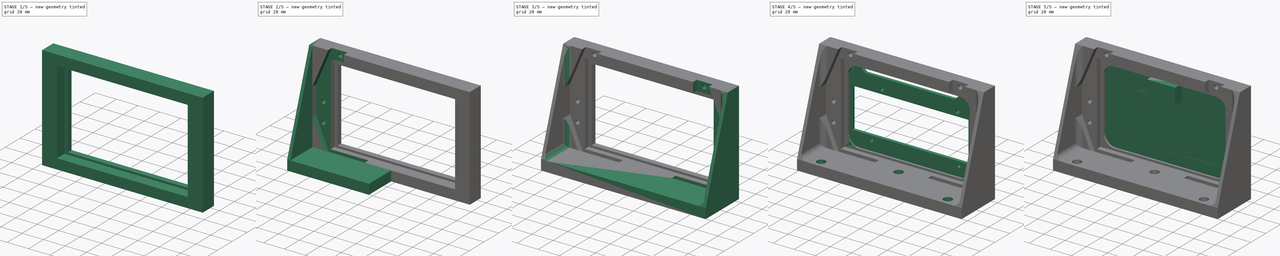
[diagram: build sequence overview — one tinted view per stage of 5, left to right]
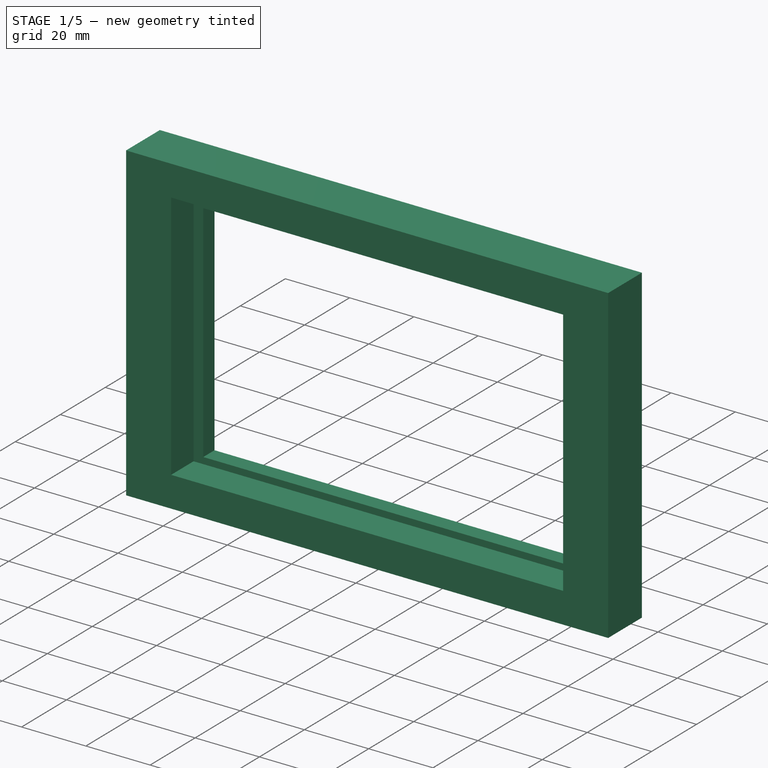
[diagram: stage 1 of 5 — iso view after this stage's code; geometry added in this stage tinted green]
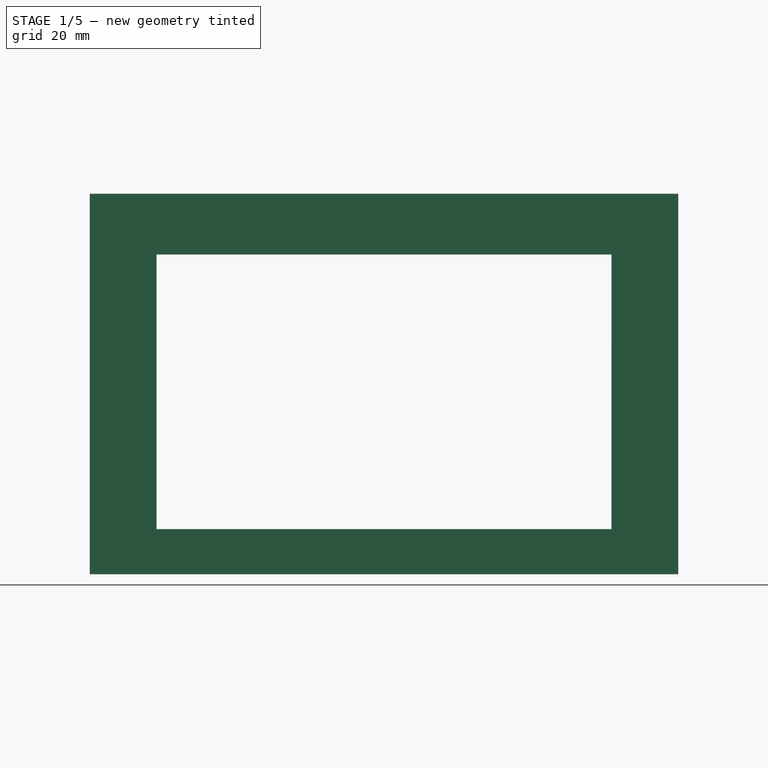
[diagram: stage 1 of 5 — front view after this stage's code; geometry added in this stage tinted green]
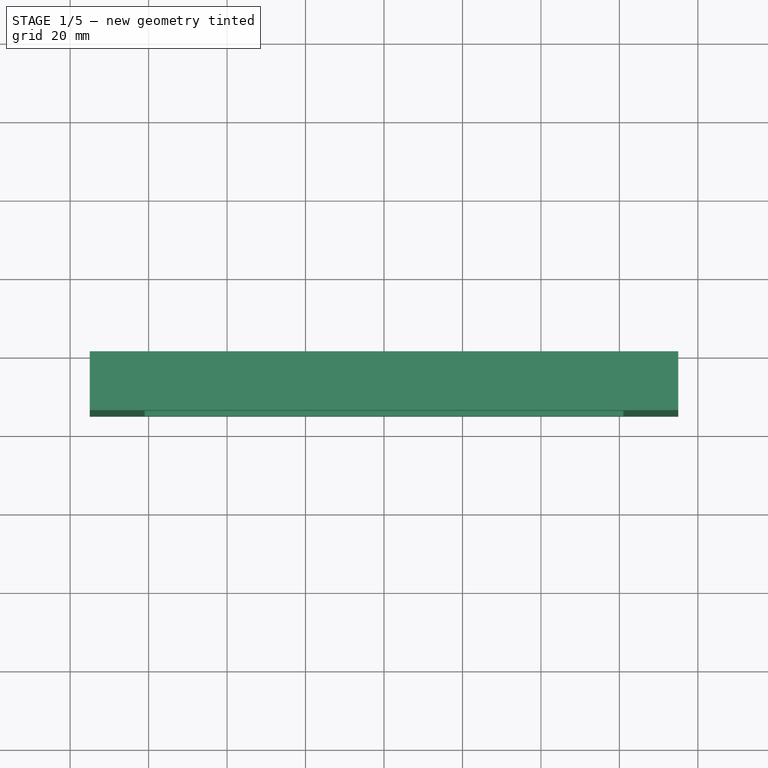
[diagram: stage 1 of 5 — top view after this stage's code; geometry added in this stage tinted green]
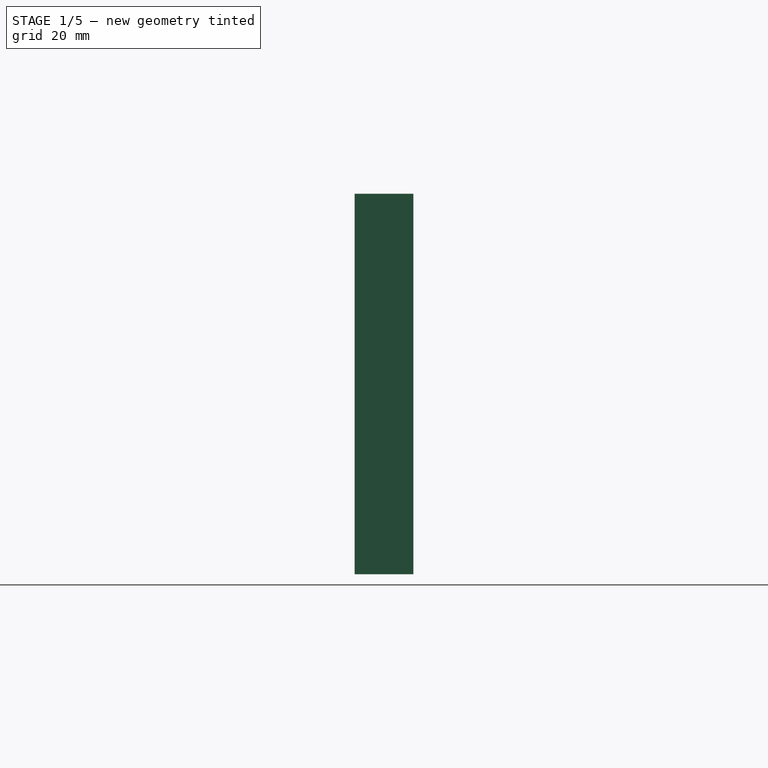
[diagram: stage 1 of 5 — right view after this stage's code; geometry added in this stage tinted green]
FCSTD DOCUMENT  (FreeCAD 1.0R39319 (Git))
Label: DisplayHolder
License: All rights reserved
LicenseURL: https://en.wikipedia.org/wiki/All_rights_reserved
objects: Sketcher::SketchObject×13, PartDesign::Pad×7, PartDesign::Pocket×6, PartDesign::Body×4, PartDesign::Fillet×2, PartDesign::Mirrored×1, PartDesign::Hole×1, App::LinkGroup×1
note: 80 computed .brp shape members not serialized (recipe doc carries the construction recipe); baked Part::Feature solids carry a one-line shape summary decoded from their .brp

FEATURE [Sketcher::SketchObject] Sketch
  ArcFitTolerance = 1e-06
  AttachmentSupport = -> [XZ_Plane]
  FullyConstrained = true
  MakeInternals = false
  MapMode = 5
  Placement = pos=(0,0,0) rot=(1,0,0;1.5708rad)
  sketch-geometry (5):
    g0: LineSegment StartX=-75 StartY=-48.5 StartZ=0 EndX=75 EndY=-48.5 EndZ=0
    g1: LineSegment StartX=75 StartY=-48.5 StartZ=0 EndX=75 EndY=48.5 EndZ=0
    g2: LineSegment StartX=75 StartY=48.5 StartZ=0 EndX=-75 EndY=48.5 EndZ=0
    g3: LineSegment StartX=-75 StartY=48.5 StartZ=0 EndX=-75 EndY=-48.5 EndZ=0
    g4: GeomPoint [constr] X=0 Y=0 Z=0
  constraints (12):
    c: Coincident(g0,g1)
    c: Coincident(g1,g2)
    c: Coincident(g2,g3)
    c: Coincident(g3,g0)
    c: Horizontal(g0)
    c: Horizontal(g2)
    c: Vertical(g1)
    c: Vertical(g3)
    c: Symmetric(g2,g0,g4)
    c: Distance(g1,g3) = 150
    c: Distance(g0,g2) = 97
    c: Coincident(g4,g-1)
FEATURE [PartDesign::Pad] Pad
  Direction = (0,-1,2e-16)
  Length = 15
  Length2 = 10
  Placement = pos=(0,0,0) rot=(1,0,0;1.5708rad)
  Profile = -> Sketch
  ReferenceAxis = -> Sketch [N_Axis]
  Refine = true
  Suppressed = false
  Type = 0
FEATURE [Sketcher::SketchObject] Sketch001
  ArcFitTolerance = 1e-06
  AttachmentSupport = -> [Pad]
  FullyConstrained = true
  MakeInternals = false
  MapMode = 5
  Placement = pos=(0,-15,0) rot=(1,0,0;1.5708rad)
  sketch-geometry (5):
    g0: LineSegment StartX=-61 StartY=-39 StartZ=0 EndX=61 EndY=-39 EndZ=0
    g1: LineSegment StartX=61 StartY=-39 StartZ=0 EndX=61 EndY=39 EndZ=0
    g2: LineSegment StartX=61 StartY=39 StartZ=0 EndX=-61 EndY=39 EndZ=0
    g3: LineSegment StartX=-61 StartY=39 StartZ=0 EndX=-61 EndY=-39 EndZ=0
    g4: GeomPoint [constr] X=0 Y=0 Z=0
  constraints (12):
    c: Coincident(g0,g1)
    c: Coincident(g1,g2)
    c: Coincident(g2,g3)
    c: Coincident(g3,g0)
    c: Horizontal(g0)
    c: Horizontal(g2)
    c: Vertical(g1)
    c: Vertical(g3)
    c: Symmetric(g2,g0,g4)
    c: Distance(g1,g3) = 122
    c: Distance(g0,g2) = 78
    c: Coincident(g4,g-1)
FEATURE [PartDesign::Pocket] Pocket
  BaseFeature = -> Pad
  Direction = (0,1,-2e-16)
  Length = 10
  Length2 = 5
  Placement = pos=(0,0,0) rot=(1,0,0;1.5708rad)
  Profile = -> Sketch001
  ReferenceAxis = -> Sketch001 [N_Axis]
  Refine = true
  Suppressed = false
  Type = 0
FEATURE [Sketcher::SketchObject] Sketch002
  ArcFitTolerance = 1e-06
  AttachmentSupport = -> [Pocket]
  FullyConstrained = false
  MakeInternals = false
  MapMode = 5
  Placement = pos=(0,0,0) rot=(-1,0,0;1.5708rad)
  sketch-geometry (4):
    g0: LineSegment StartX=-57.9918 StartY=37 StartZ=0 EndX=58 EndY=37 EndZ=0
    g1: LineSegment StartX=58 StartY=37 StartZ=0 EndX=58 EndY=-33 EndZ=0
    g2: LineSegment StartX=-57.9918 StartY=-33 StartZ=0 EndX=-57.9918 EndY=37 EndZ=0
    g3: LineSegment StartX=-57.9918 StartY=-33 StartZ=0 EndX=58 EndY=-33 EndZ=0
  constraints (10):
    c: Horizontal(g0)
    c: Distance(g-1,g0) = 37
    c: Coincident(g0,g2)
    c: Coincident(g0,g1)
    c: Distance(g-1,g3) = 33
    c: Coincident(g2,g3)
    c: Coincident(g1,g3)
    c: Horizontal(g3)
    c: Vertical(g2)
    c: Vertical(g1)
FEATURE [PartDesign::Pocket] Pocket001
  BaseFeature = -> Pocket
  Direction = (0,-1,-2e-16)
  Length = 5
  Length2 = 5
  Placement = pos=(0,0,0) rot=(1,0,0;1.5708rad)
  Profile = -> Sketch002
  ReferenceAxis = -> Sketch002 [N_Axis]
  Refine = true
  Suppressed = false
  Type = 0
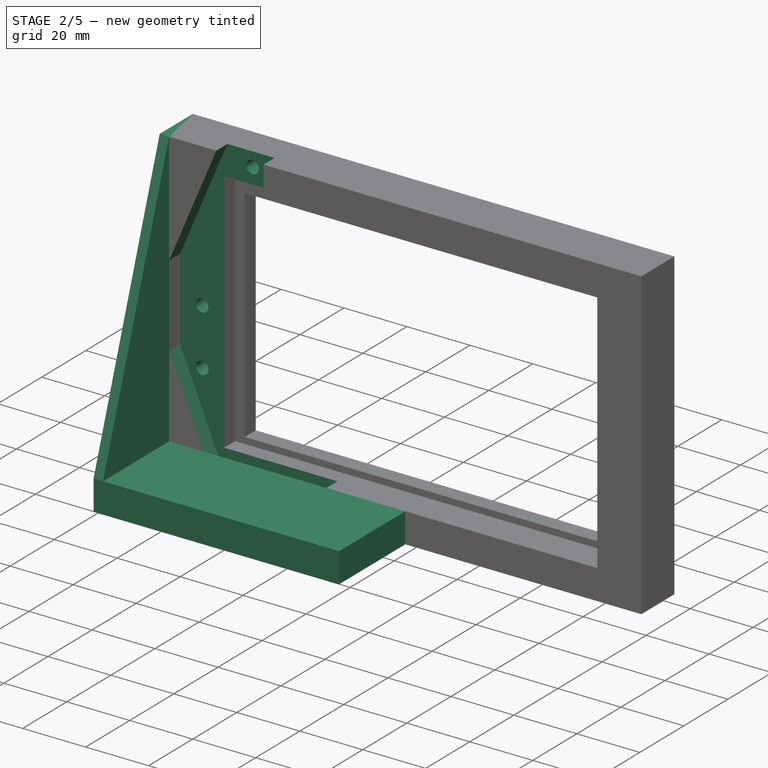
[diagram: stage 2 of 5 — iso view after this stage's code; geometry added in this stage tinted green]
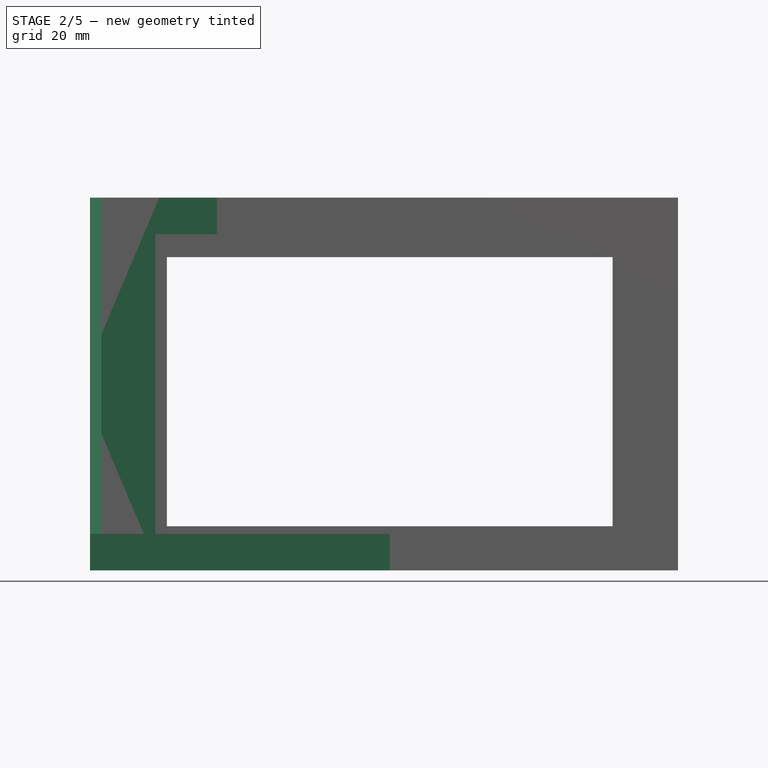
[diagram: stage 2 of 5 — front view after this stage's code; geometry added in this stage tinted green]
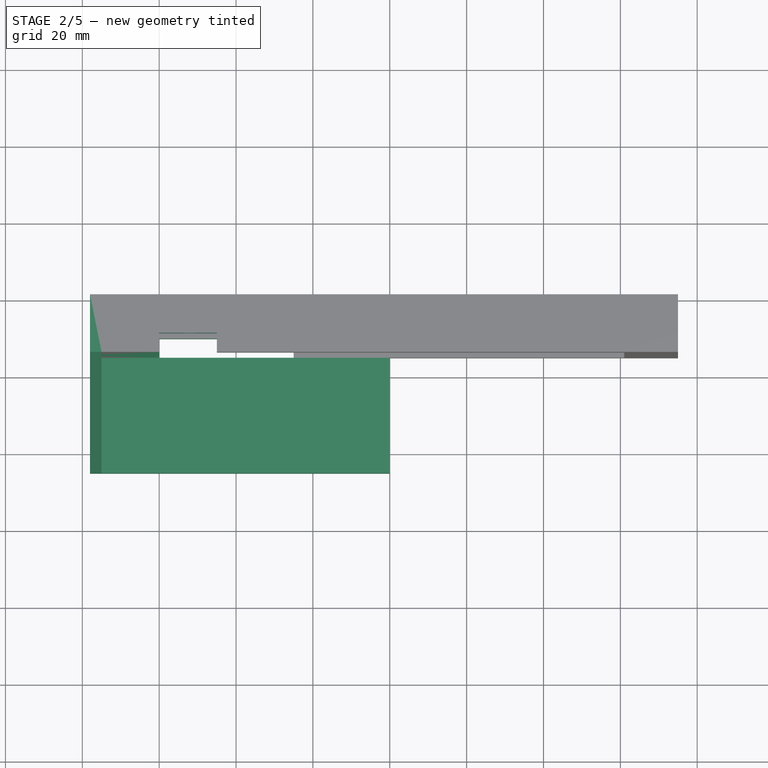
[diagram: stage 2 of 5 — top view after this stage's code; geometry added in this stage tinted green]
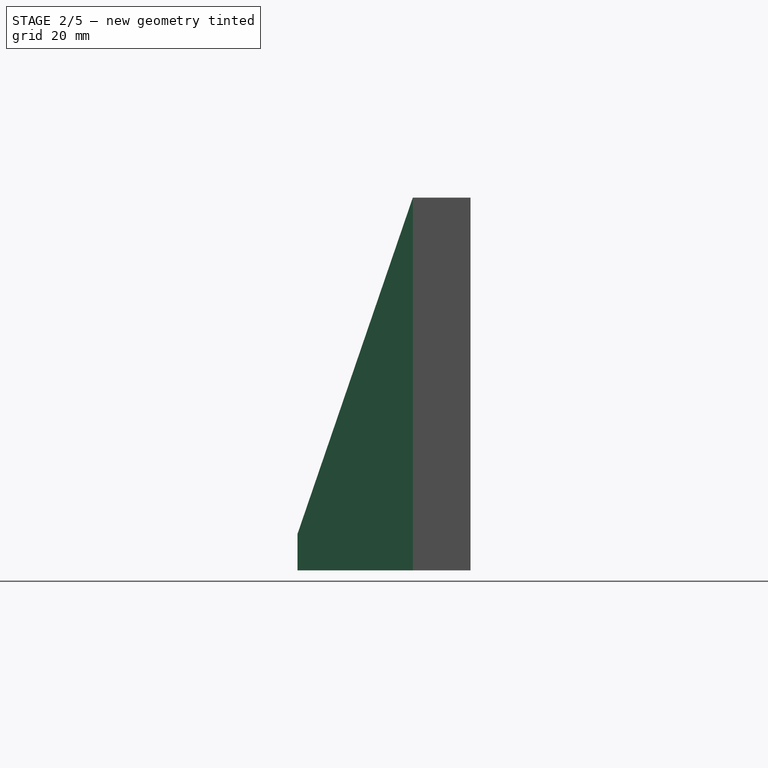
[diagram: stage 2 of 5 — right view after this stage's code; geometry added in this stage tinted green]
FEATURE [Sketcher::SketchObject] Sketch003
  ArcFitTolerance = 1e-06
  AttachmentSupport = -> [Pocket001]
  ExternalGeometry = -> [Pocket001]
  FullyConstrained = false
  MakeInternals = false
  MapMode = 5
  Placement = pos=(0,-15,0) rot=(1,0,0;1.5708rad)
  sketch-geometry (8):
    g0: LineSegment StartX=-45 StartY=48.5 StartZ=0 EndX=-60 EndY=48.5 EndZ=0
    g1: LineSegment StartX=-60 StartY=48.5 StartZ=0 EndX=-75 EndY=13 EndZ=0
    g2: LineSegment StartX=-75 StartY=13 StartZ=0 EndX=-75 EndY=-13 EndZ=0
    g3: LineSegment StartX=-75 StartY=-13 StartZ=0 EndX=-60 EndY=-48.5 EndZ=0
    g4: LineSegment StartX=-60 StartY=-48.5 StartZ=0 EndX=-25 EndY=-48.5 EndZ=0
    g5: LineSegment StartX=-45 StartY=48.5 StartZ=0 EndX=-45 EndY=-25.4373 EndZ=0
    g6: LineSegment StartX=-45 StartY=-25.4373 StartZ=0 EndX=-25 EndY=-25.4373 EndZ=0
    g7: LineSegment StartX=-25 StartY=-25.4373 StartZ=0 EndX=-25 EndY=-48.5 EndZ=0
  constraints (22):
    c: PointOnObject(g4,g-4)
    c: PointOnObject(g0,g-3)
    c: Horizontal(g0)
    c: Coincident(g0,g1)
    c: Coincident(g1,g2)
    c: Vertical(g2)
    c: Coincident(g2,g3)
    c: PointOnObject(g3,g-4)
    c: Coincident(g3,g4)
    c: DistanceX(g0,g0) = 15
    c: Distance(g4,g4) = 35
    c: DistanceY(g2,g2) = 26
    c: Distance(g1,g-1) = 13
    c: Distance(g-2,g2) = 75
    c: Coincident(g0,g5)
    c: Vertical(g5)
    c: Coincident(g5,g6)
    c: Horizontal(g6)
    c: Coincident(g6,g7)
    c: Coincident(g7,g4)
    c: DistanceX(g2,g3) = 15
    c: Vertical(g7)
FEATURE [PartDesign::Pocket] Pocket002
  BaseFeature = -> Pocket001
  Direction = (0,1,-2e-16)
  Length = 5
  Length2 = 5
  Placement = pos=(0,0,0) rot=(1,0,0;1.5708rad)
  Profile = -> Sketch003
  ReferenceAxis = -> Sketch003 [N_Axis]
  Refine = true
  Suppressed = false
  Type = 0
FEATURE [Sketcher::SketchObject] Sketch005
  ArcFitTolerance = 1e-06
  AttachmentSupport = -> [Pocket002]
  ExternalGeometry = -> [Pocket002]
  FullyConstrained = false
  MakeInternals = false
  MapMode = 5
  Placement = pos=(-75,0,0) rot=(0.707107,0,-0.707107;3.14159rad)
  sketch-geometry (5):
    g0: LineSegment StartX=-48.5 StartY=15 StartZ=0 EndX=39 EndY=45 EndZ=0
    g1: LineSegment StartX=39 StartY=45 StartZ=0 EndX=48.5 EndY=45 EndZ=0
    g2: LineSegment StartX=48.5 StartY=45 StartZ=0 EndX=48.5 EndY=7.1e-15 EndZ=0
    g3: LineSegment StartX=48.5 StartY=7.1e-15 StartZ=0 EndX=-48.5 EndY=-1e-14 EndZ=0
    g4: LineSegment StartX=-48.5 StartY=-1e-14 StartZ=0 EndX=-48.5 EndY=15 EndZ=0
  constraints (12):
    c: Coincident(g0,g1)
    c: Coincident(g1,g2)
    c: Coincident(g2,g3)
    c: Coincident(g3,g4)
    c: Coincident(g4,g0)
    c: Vertical(g2)
    c: Horizontal(g1)
    c: DistanceY(g2,g2) = 45
    c: Vertical(g4)
    c: Coincident(g3,g-3)
    c: Coincident(g2,g-4)
    c: Vertical(g0,g-5)
FEATURE [PartDesign::Pad] Pad002
  BaseFeature = -> Pocket002
  Direction = (-1,0,-2e-16)
  Length = 3
  Length2 = 10
  Placement = pos=(0,0,0) rot=(1,0,0;1.5708rad)
  Profile = -> Sketch005
  ReferenceAxis = -> Sketch005 [N_Axis]
  Refine = true
  Suppressed = false
  Type = 0
FEATURE [Sketcher::SketchObject] Sketch006
  ArcFitTolerance = 1e-06
  AttachmentSupport = -> [Pad002]
  ExternalGeometry = -> [Pad002]
  FullyConstrained = false
  MakeInternals = false
  MapMode = 5
  Placement = pos=(-75,0,-2.25e-14) rot=(0.707107,0,0.707107;3.14159rad)
  sketch-geometry (4):
    g0: LineSegment StartX=-48.5 StartY=45 StartZ=0 EndX=-48.5 EndY=15 EndZ=0
    g1: LineSegment StartX=-48.5 StartY=15 StartZ=0 EndX=-39 EndY=15 EndZ=0
    g2: LineSegment StartX=-39 StartY=15 StartZ=0 EndX=-39 EndY=45 EndZ=0
    g3: LineSegment StartX=-39 StartY=45 StartZ=0 EndX=-48.5 EndY=45 EndZ=0
  constraints (9):
    c: Coincident(g0,g1)
    c: Coincident(g1,g2)
    c: Coincident(g2,g3)
    c: Coincident(g3,g0)
    c: Vertical(g0)
    c: Vertical(g2)
    c: Horizontal(g1)
    c: Coincident(g0,g-4)
    c: Coincident(g2,g-4)
FEATURE [PartDesign::Pad] Pad003
  BaseFeature = -> Pad002
  Direction = (1,0,-2e-16)
  Length = 75
  Length2 = 10
  Placement = pos=(0,0,0) rot=(1,0,0;1.5708rad)
  Profile = -> Sketch006
  ReferenceAxis = -> Sketch006 [N_Axis]
  Refine = true
  Suppressed = false
  Type = 0
FEATURE [Sketcher::SketchObject] Sketch007
  ArcFitTolerance = 1e-06
  AttachmentSupport = -> [Pad003]
  FullyConstrained = true
  MakeInternals = false
  MapMode = 5
  Placement = pos=(0,-10,0) rot=(1,0,0;1.5708rad)
  sketch-geometry (3):
    g0: Circle CenterX=-52 CenterY=44 CenterZ=0 NormalX=0 NormalY=0 NormalZ=1 AngleXU=0 Radius=2
    g1: Circle CenterX=-68 CenterY=0 CenterZ=0 NormalX=0 NormalY=0 NormalZ=1 AngleXU=0 Radius=2
    g2: Circle CenterX=-68 CenterY=-18 CenterZ=0 NormalX=0 NormalY=0 NormalZ=1 AngleXU=0 Radius=2
  constraints (9):
    c: Diameter(g0) = 4
    c: Diameter(g1) = 4
    c: PointOnObject(g1,g-1)
    c: Diameter(g2) = 4
    c: DistanceX(g1,g-1) = 68
    c: DistanceX(g2,g-1) = 68
    c: Distance(g2,g-1) = 18
    c: Distance(g0,g-2) = 52
    c: DistanceY(g-1,g0) = 44
FEATURE [PartDesign::Pocket] Pocket003
  BaseFeature = -> Pad003
  Direction = (0,1,-2e-16)
  Length = 8
  Length2 = 5
  Placement = pos=(0,0,0) rot=(1,0,0;1.5708rad)
  Profile = -> Sketch007
  ReferenceAxis = -> Sketch007 [N_Axis]
  Refine = true
  Suppressed = false
  Type = 0
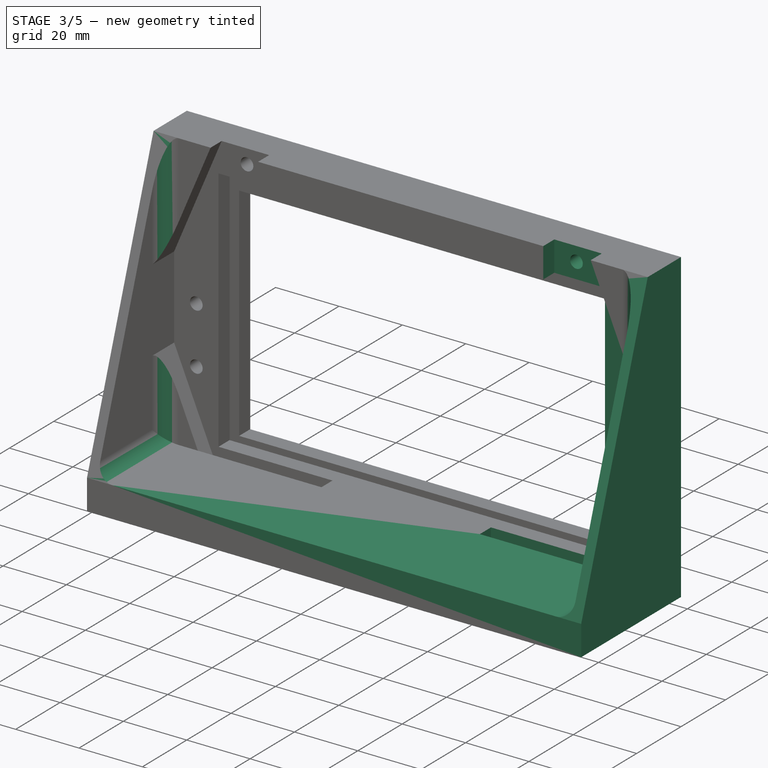
[diagram: stage 3 of 5 — iso view after this stage's code; geometry added in this stage tinted green]
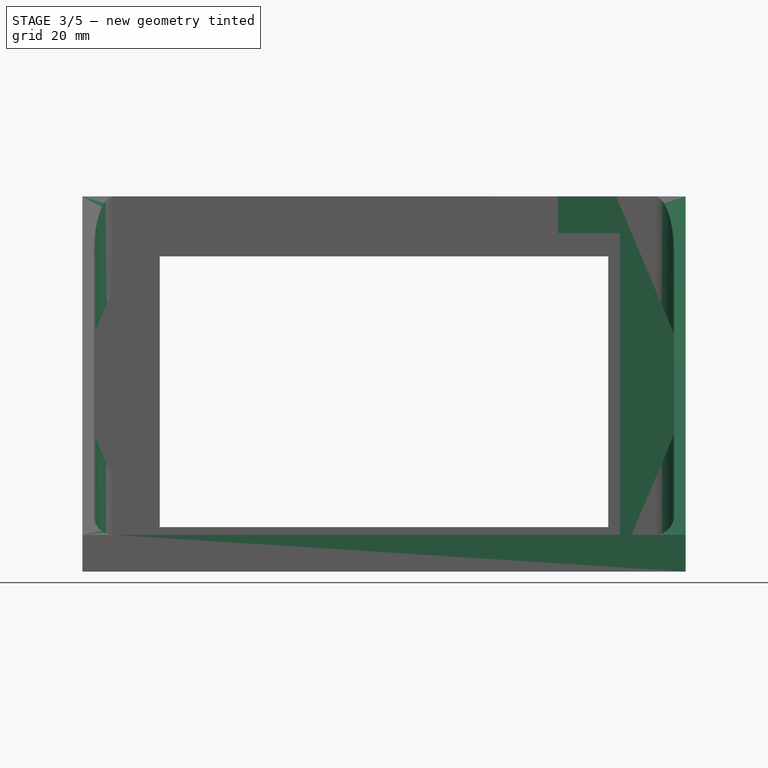
[diagram: stage 3 of 5 — front view after this stage's code; geometry added in this stage tinted green]
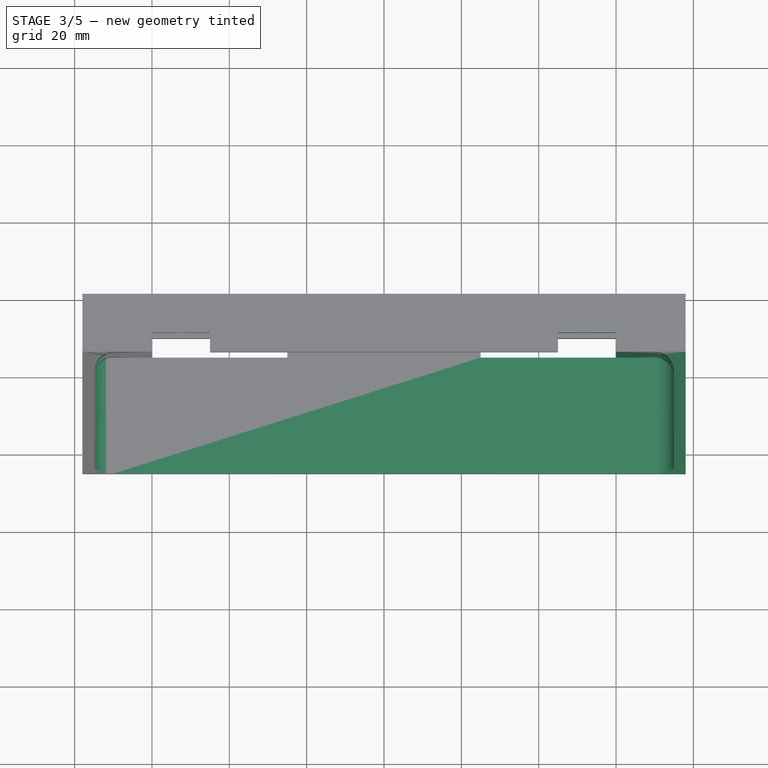
[diagram: stage 3 of 5 — top view after this stage's code; geometry added in this stage tinted green]
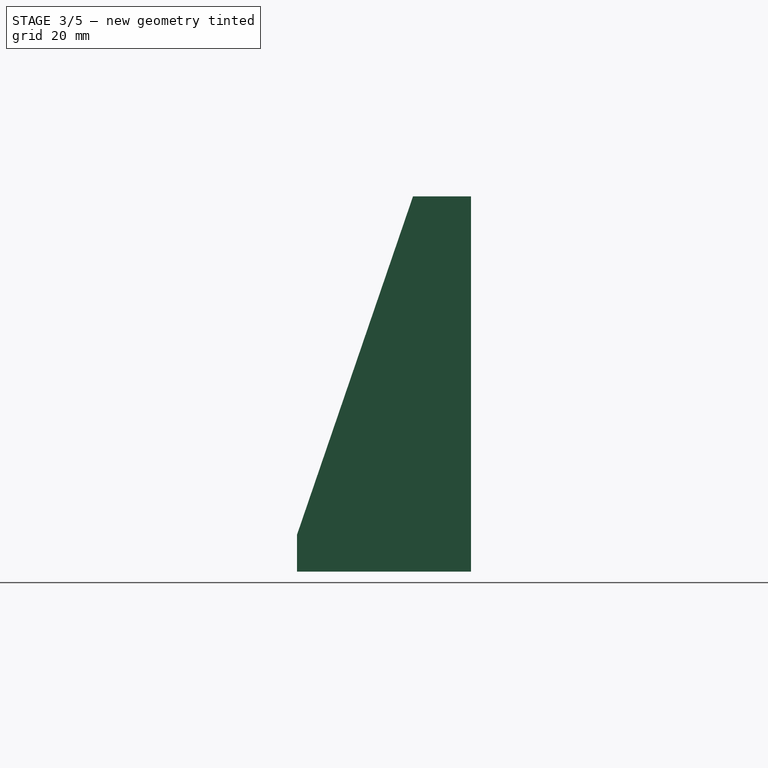
[diagram: stage 3 of 5 — right view after this stage's code; geometry added in this stage tinted green]
FEATURE [PartDesign::Fillet] Fillet
  Base = -> Pocket003 [Edge57,Edge74,Edge77]
  BaseFeature = -> Pocket003
  Placement = pos=(0,0,0) rot=(1,0,0;1.5708rad)
  Radius = 5
  Refine = true
  SupportTransform = false
  Suppressed = false
  UseAllEdges = false
FEATURE [Sketcher::SketchObject] Sketch008
  ArcFitTolerance = 1e-06
  AttachmentSupport = -> [Fillet]
  FullyConstrained = false
  MakeInternals = false
  MapMode = 5
  Placement = pos=(0,-15,0) rot=(1,0,0;1.5708rad)
  sketch-geometry (4):
    g0: LineSegment StartX=0 StartY=91.9087 StartZ=0 EndX=0 EndY=-58.0986 EndZ=0
    g1: LineSegment StartX=0 StartY=-58.0986 StartZ=0 EndX=97.0826 EndY=-58.0986 EndZ=0
    g2: LineSegment StartX=97.0826 StartY=-58.0986 StartZ=0 EndX=97.0826 EndY=91.9087 EndZ=0
    g3: LineSegment StartX=97.0826 StartY=91.9087 StartZ=0 EndX=0 EndY=91.9087 EndZ=0
  constraints (9):
    c: Coincident(g0,g1)
    c: Coincident(g1,g2)
    c: Coincident(g2,g3)
    c: Coincident(g3,g0)
    c: Vertical(g0)
    c: Vertical(g2)
    c: Horizontal(g1)
    c: Horizontal(g3)
    c: PointOnObject(g0,g-2)
FEATURE [PartDesign::Pocket] Pocket004
  BaseFeature = -> Fillet
  Direction = (0,1,-2e-16)
  Length = 5
  Length2 = 5
  Placement = pos=(0,0,0) rot=(1,0,0;1.5708rad)
  Profile = -> Sketch008
  ReferenceAxis = -> Sketch008 [N_Axis]
  Refine = true
  Suppressed = false
  Type = 1
FEATURE [PartDesign::Mirrored] Mirrored
  BaseFeature = -> Pocket004
  MirrorPlane = -> YZ_Plane
  Placement = pos=(0,0,0) rot=(1,0,0;1.5708rad)
  Refine = true
  Suppressed = false
  TransformMode = 1
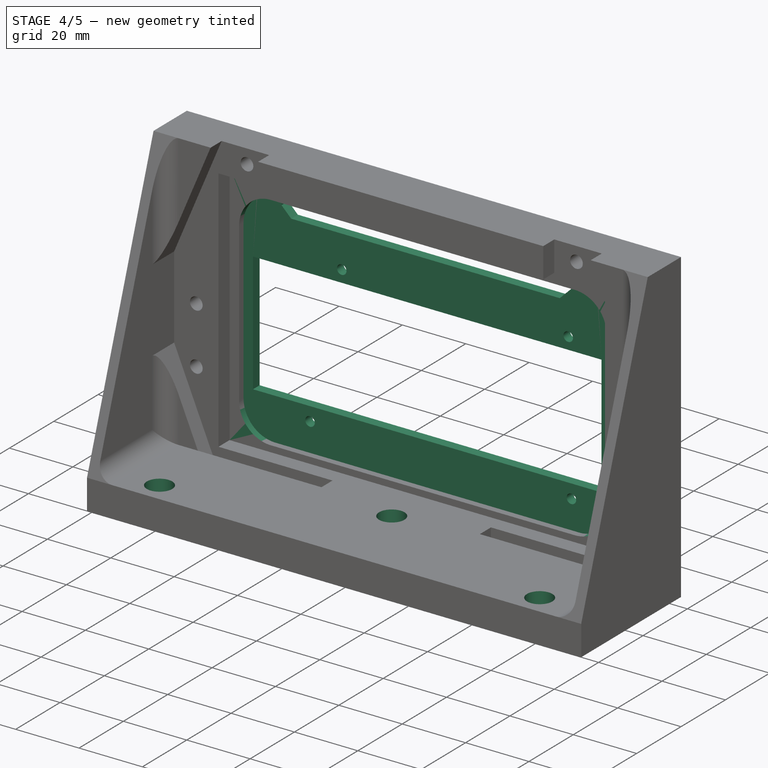
[diagram: stage 4 of 5 — iso view after this stage's code; geometry added in this stage tinted green]
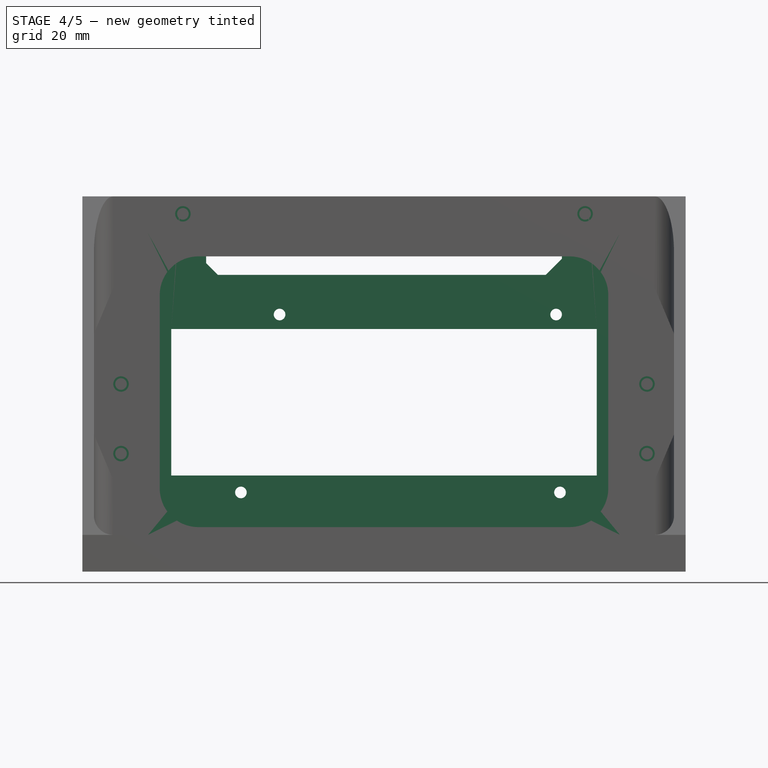
[diagram: stage 4 of 5 — front view after this stage's code; geometry added in this stage tinted green]
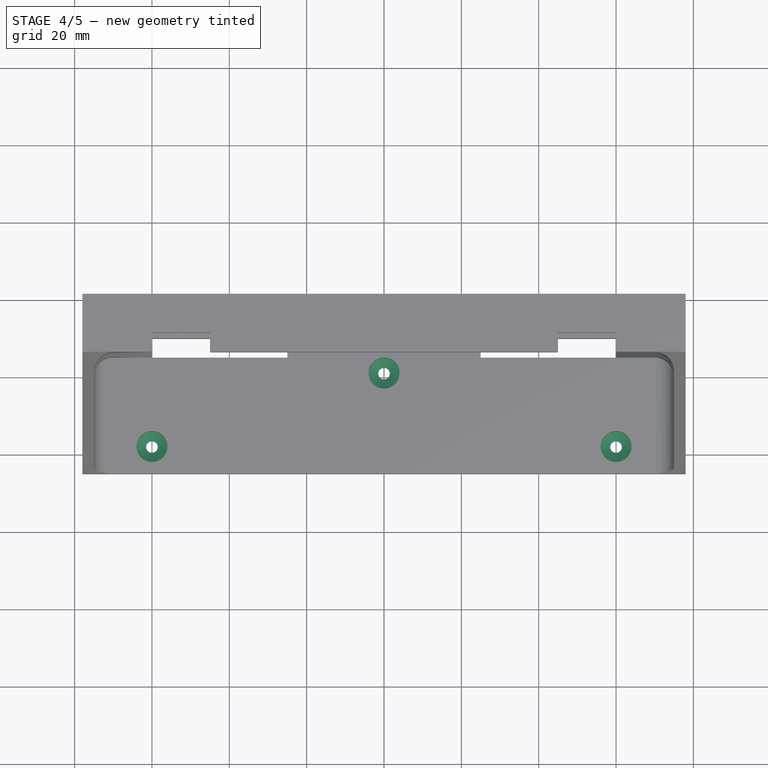
[diagram: stage 4 of 5 — top view after this stage's code; geometry added in this stage tinted green]
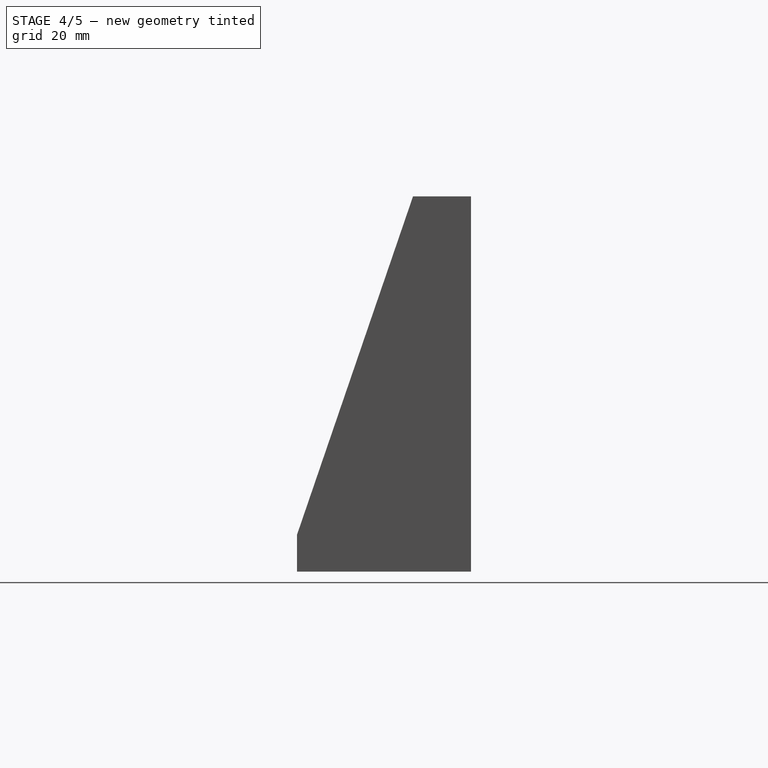
[diagram: stage 4 of 5 — right view after this stage's code; geometry added in this stage tinted green]
FEATURE [Sketcher::SketchObject] Sketch009
  ArcFitTolerance = 1e-06
  AttachmentSupport = -> [Mirrored]
  FullyConstrained = true
  MakeInternals = false
  MapMode = 5
  Placement = pos=(0,9.4e-15,-39) rot=(0,0,1;3.14159rad)
  sketch-geometry (3):
    g0: Circle CenterX=-60 CenterY=38 CenterZ=0 NormalX=0 NormalY=0 NormalZ=1 AngleXU=0 Radius=1.5
    g1: Circle CenterX=0 CenterY=19 CenterZ=0 NormalX=0 NormalY=0 NormalZ=1 AngleXU=0 Radius=1.5
    g2: Circle CenterX=60 CenterY=38 CenterZ=0 NormalX=0 NormalY=0 NormalZ=1 AngleXU=0 Radius=1.5
  constraints (9):
    c: Diameter(g0) = 3
    c: Diameter(g1) = 3
    c: PointOnObject(g1,g-2)
    c: Diameter(g2) = 3
    c: DistanceY(g-1,g0) = 38
    c: DistanceY(g-1,g1) = 19
    c: DistanceX(g-1,g2) = 60
    c: DistanceX(g0,g-1) = 60
    c: Horizontal(g2,g0)
FEATURE [PartDesign::Pocket] Pocket005
  BaseFeature = -> Mirrored
  Direction = (0,0,-1)
  Length = 5
  Length2 = 5
  Placement = pos=(0,0,0) rot=(1,0,0;1.5708rad)
  Profile = -> Sketch009
  ReferenceAxis = -> Sketch009 [N_Axis]
  Refine = true
  Suppressed = false
  Type = 1
FEATURE [PartDesign::Body] Body002  label="HDMIBridge"
  AllowCompound = false
  Group = -> [Sketch011,Pad005,Sketch012,Pad006]
  Origin = -> Origin002
  Placement = pos=(0,-15.5,-5.6) rot=(0,0,1;0rad)
  Tip = -> Pad006
FEATURE [Sketcher::SketchObject] Sketch013
  ArcFitTolerance = 1e-06
  AttachmentSupport = -> [XZ_Plane003]
  FullyConstrained = false
  MakeInternals = false
  MapMode = 5
  Placement = pos=(0,0,0) rot=(1,0,0;1.5708rad)
  sketch-geometry (33):
    g0: LineSegment StartX=-60 StartY=48.5 StartZ=0 EndX=-46 EndY=48.5 EndZ=0
    g1: LineSegment StartX=-46 StartY=48.5 StartZ=0 EndX=-46 EndY=31.2652 EndZ=0
    g2: LineSegment StartX=-46 StartY=31.2652 StartZ=0 EndX=-42.9656 EndY=28.2308 EndZ=0
    g3: LineSegment StartX=-42.9656 StartY=28.2308 StartZ=0 EndX=41.8391 EndY=28.2308 EndZ=0
    g4: LineSegment StartX=41.8391 StartY=28.2308 StartZ=0 EndX=46 EndY=32.3918 EndZ=0
    g5: LineSegment StartX=46 StartY=32.3918 StartZ=0 EndX=46 EndY=48.5 EndZ=0
    g6: LineSegment StartX=46 StartY=48.5 StartZ=0 EndX=60 EndY=48.5 EndZ=0
    g7: LineSegment StartX=60 StartY=48.5 StartZ=0 EndX=75 EndY=13 EndZ=0
    g8: LineSegment StartX=75 StartY=13 StartZ=0 EndX=75 EndY=-13 EndZ=0
    g9: LineSegment StartX=75 StartY=-13 StartZ=0 EndX=60 EndY=-48.5 EndZ=0
    g10: LineSegment StartX=60 StartY=-48.5 StartZ=0 EndX=40 EndY=-48.5 EndZ=0
    g11: LineSegment StartX=40 StartY=-48.5 StartZ=0 EndX=40 EndY=-38 EndZ=0
    g12: LineSegment StartX=40 StartY=-38 StartZ=0 EndX=-26 EndY=-38 EndZ=0
    g13: LineSegment StartX=-26 StartY=-38 StartZ=0 EndX=-26 EndY=-48.5 EndZ=0
    g14: LineSegment StartX=-26 StartY=-48.5 StartZ=0 EndX=-60 EndY=-48.5 EndZ=0
    g15: LineSegment StartX=-60 StartY=-48.5 StartZ=0 EndX=-75 EndY=-13 EndZ=0
    g16: LineSegment StartX=-75 StartY=-13 StartZ=0 EndX=-75 EndY=13 EndZ=0
    g17: LineSegment StartX=-75 StartY=13 StartZ=0 EndX=-60 EndY=48.5 EndZ=0
    g18: Circle CenterX=-52 CenterY=44 CenterZ=0 NormalX=0 NormalY=0 NormalZ=1 AngleXU=0 Radius=1.5
    g19: Circle CenterX=-68 CenterY=0 CenterZ=0 NormalX=0 NormalY=0 NormalZ=1 AngleXU=0 Radius=1.5
    g20: Circle CenterX=-68 CenterY=-18 CenterZ=0 NormalX=0 NormalY=0 NormalZ=1 AngleXU=0 Radius=1.5
    g21: Circle CenterX=52 CenterY=44 CenterZ=0 NormalX=0 NormalY=0 NormalZ=1 AngleXU=0 Radius=1.5
    g22: Circle CenterX=68 CenterY=0 CenterZ=0 NormalX=0 NormalY=0 NormalZ=1 AngleXU=0 Radius=1.5
    g23: Circle CenterX=68 CenterY=-18 CenterZ=0 NormalX=0 NormalY=0 NormalZ=1 AngleXU=0 Radius=1.5
    g24: LineSegment StartX=55 StartY=-23.6617 StartZ=0 EndX=55 EndY=14.2073 EndZ=0
    g25: LineSegment StartX=55 StartY=14.2073 StartZ=0 EndX=-55 EndY=14.2073 EndZ=0
    g26: LineSegment StartX=-55 StartY=14.2073 StartZ=0 EndX=-55 EndY=-23.6617 EndZ=0
    g27: LineSegment StartX=-55 StartY=-23.6617 StartZ=0 EndX=55 EndY=-23.6617 EndZ=0
    g28: GeomPoint [constr] X=0 Y=0 Z=0
    g29: Circle CenterX=-27 CenterY=17.963 CenterZ=0 NormalX=0 NormalY=0 NormalZ=1 AngleXU=0 Radius=1.5
    g30: Circle CenterX=44.5 CenterY=17.963 CenterZ=0 NormalX=0 NormalY=0 NormalZ=1 AngleXU=0 Radius=1.5
    g31: Circle CenterX=-37 CenterY=-28.037 CenterZ=0 NormalX=0 NormalY=0 NormalZ=1 AngleXU=0 Radius=1.5
    g32: Circle CenterX=45.5 CenterY=-28.037 CenterZ=0 NormalX=0 NormalY=0 NormalZ=1 AngleXU=0 Radius=1.5
  constraints (91):
    c: Horizontal(g0)
    c: Coincident(g0,g1)
    c: Vertical(g1)
    c: Coincident(g1,g2)
    c: Coincident(g2,g3)
    c: Horizontal(g3)
    c: Coincident(g3,g4)
    c: Coincident(g4,g5)
    c: Vertical(g5)
    c: Coincident(g5,g6)
    c: Horizontal(g6)
    c: Coincident(g6,g7)
    c: Coincident(g7,g8)
    c: Vertical(g8)
    c: Coincident(g8,g9)
    c: Horizontal(g10)
    c: Coincident(g10,g11)
    c: Vertical(g11)
    c: Coincident(g11,g12)
    c: Horizontal(g12)
    c: Coincident(g12,g13)
    c: Vertical(g13)
    c: Coincident(g13,g14)
    c: Horizontal(g14)
    c: Coincident(g14,g15)
    c: Coincident(g15,g16)
    c: Vertical(g16)
    c: Coincident(g16,g17)
    c: Coincident(g17,g0)
    c: Coincident(g9,g10)
    c: DistanceX(g0,g-1) = 60
    c: DistanceX(g0,g-1) = 46
    c: Distance(g-1,g0) = 48.5
    c: Angle(g3,g2) = 2.35619
    c: Angle(g4,g3) = 2.35619
    c: DistanceX(g-1,g5) = 46
    c: DistanceX(g-1,g6) = 60
    c: Distance(g-1,g6) = 48.5
    c: DistanceX(g16,g-1) = 75
    c: Distance(g16,g-1) = 13
    c: Distance(g15,g-1) = 13
    c: DistanceX(g14,g-1) = 60
    c: Distance(g-2,g13) = 26
    c: Distance(g-2,g11) = 40
    c: DistanceY(g13,g13) = 10.5
    c: Distance(g11,g11) = 10.5
    c: Distance(g-1,g12) = 38
    c: DistanceX(g-1,g9) = 60
    c: Distance(g-2,g8) = 75
    c: Distance(g7,g-1) = 13
    c: DistanceY(g8,g-1) = 13
    c: Diameter(g18) = 3
    c: Diameter(g19) = 3
    c: PointOnObject(g19,g-1)
    c: PointOnObject(g22,g-1)
    c: DistanceX(g18,g-1) = 52
    c: Distance(g18,g-1) = 44
    c: DistanceX(g19,g-1) = 68
    c: Distance(g20,g-2) = 68
    c: DistanceY(g20,g-1) = 18
    c: Diameter(g20) = 3
    c: Diameter(g21) = 3
    c: Distance(g21,g-2) = 52
    c: Distance(g21,g-1) = 44
    c: Diameter(g22) = 3
    c: DistanceX(g-1,g22) = 68
    c: Diameter(g23) = 3
    c: DistanceY(g23,g-1) = 18
    c: Distance(g23,g-2) = 68
    c: Coincident(g24,g25)
    c: Coincident(g25,g26)
    c: Coincident(g26,g27)
    c: Coincident(g27,g24)
    c: Vertical(g24)
    c: Vertical(g26)
    c: Horizontal(g25)
    c: Horizontal(g27)
    c: Coincident(g28,g-1)
    c: Diameter(g29) = 3
    c: Diameter(g30) = 3
    c: Diameter(g31) = 3
    c: Diameter(g32) = 3
    c: Distance(g32,g-2) = 45.5
    c: DistanceX(g31,g32) = 82.5
    c: DistanceX(g-1,g30) = 44.5
    c: DistanceY(g32,g30) = 46
    c: Horizontal(g31,g32)
    c: Horizontal(g29,g30)
    c: DistanceX(g29,g30) = 71.5
    c: Distance(g-2,g26) = 55
    c: Distance(g-2,g24) = 55
FEATURE [PartDesign::Pad] Pad007
  Direction = (0,-1,2e-16)
  Length = 3
  Length2 = 10
  Placement = pos=(0,0,0) rot=(1,0,0;1.5708rad)
  Profile = -> Sketch013
  ReferenceAxis = -> Sketch013 [N_Axis]
  Refine = true
  Suppressed = false
  Type = 0
FEATURE [PartDesign::Body] Body003  label="DisplayLid"
  AllowCompound = false
  Group = -> [Sketch013,Pad007]
  Origin = -> Origin003
  Placement = pos=(0,-10,0) rot=(0,0,1;0rad)
  Tip = -> Pad007
FEATURE [PartDesign::Hole] Hole
  BaseFeature = -> Pocket005
  CustomThreadClearance = 0
  Depth = 5
  DepthType = 0
  Diameter = 8
  DrillForDepth = false
  DrillPoint = 1
  DrillPointAngle = 118
  HoleCutCountersinkAngle = 90
  HoleCutCustomValues = false
  HoleCutDepth = 0
  HoleCutDiameter = 6.1
  HoleCutType = 0
  ModelThread = false
  Placement = pos=(0,0,0) rot=(1,0,0;1.5708rad)
  Profile = -> Pocket005 [Edge66,Edge65,Edge67]
  Refine = true
  Suppressed = false
  Tapered = false
  TaperedAngle = 90
  ThreadClass = 0
  ThreadDepth = 5
  ThreadDepthType = 0
  ThreadDirection = 0
  ThreadFit = 0
  ThreadSize = 0
  ThreadType = 0
  Threaded = false
  UseCustomThreadClearance = false
FEATURE [PartDesign::Fillet] Fillet001
  Base = -> Hole [Edge148,Edge145,Edge147,Edge146]
  BaseFeature = -> Hole
  Placement = pos=(0,0,0) rot=(1,0,0;1.5708rad)
  Radius = 10
  Refine = true
  SupportTransform = false
  Suppressed = false
  UseAllEdges = false
FEATURE [PartDesign::Body] Body  label="MainDisplay"
  AllowCompound = false
  Group = -> [Sketch,Pad,Sketch001,Pocket,Sketch002,Pocket001,Sketch003,Pocket002,Sketch005,Pad002,Sketch006,Pad003,Sketch007,Pocket003,Fillet,Sketch008,Pocket004,Mirrored,Sketch009,Pocket005,Hole,Fillet001]
  Origin = -> Origin
  Tip = -> Fillet001
FEATURE [App::LinkGroup] LinkGroup  label="DisplayGroup"
  ElementList = -> [Body,Body001,Body002,Body003]
  LinkMode = 0
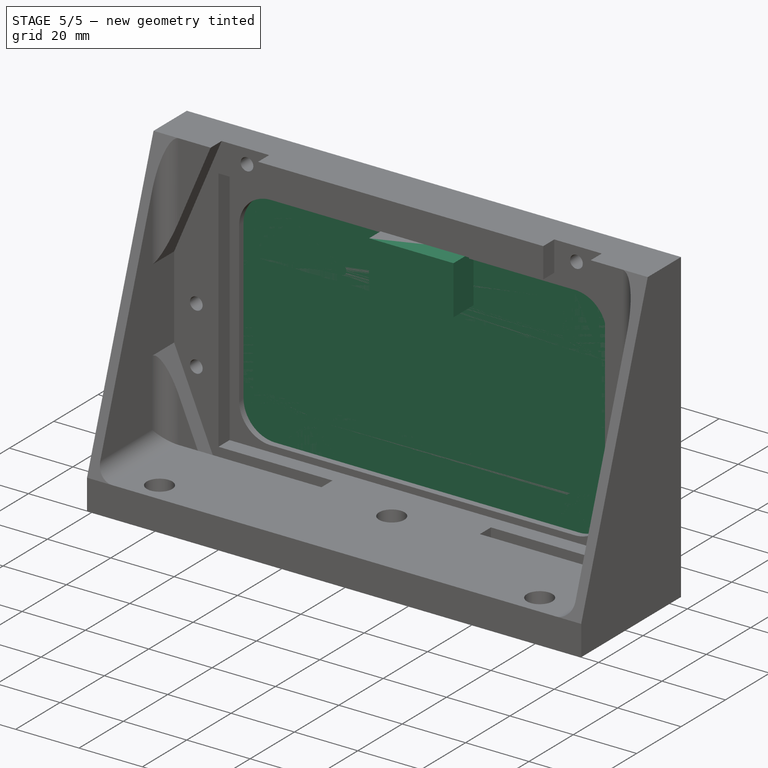
[diagram: stage 5 of 5 — iso view after this stage's code; geometry added in this stage tinted green]
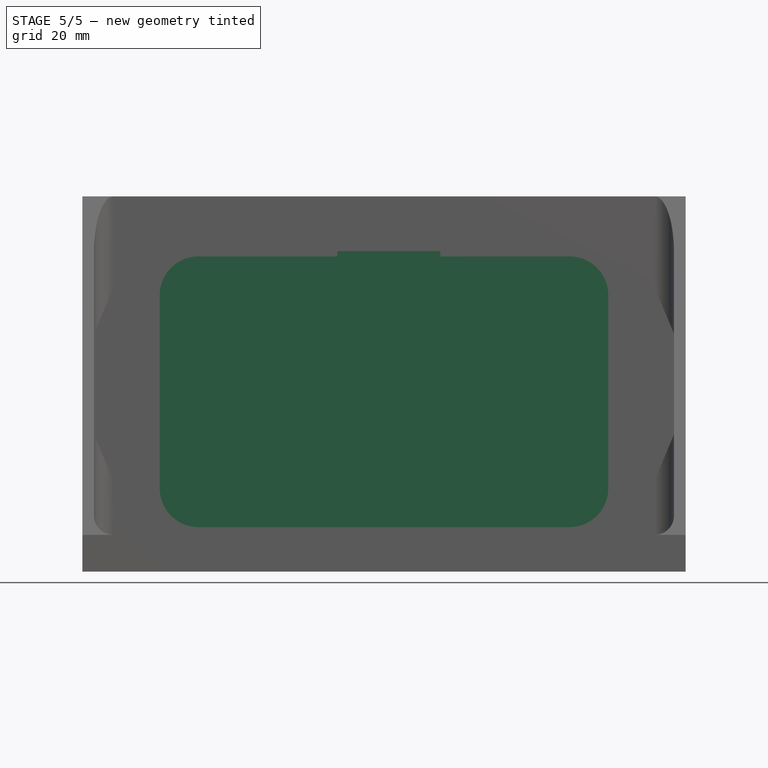
[diagram: stage 5 of 5 — front view after this stage's code; geometry added in this stage tinted green]
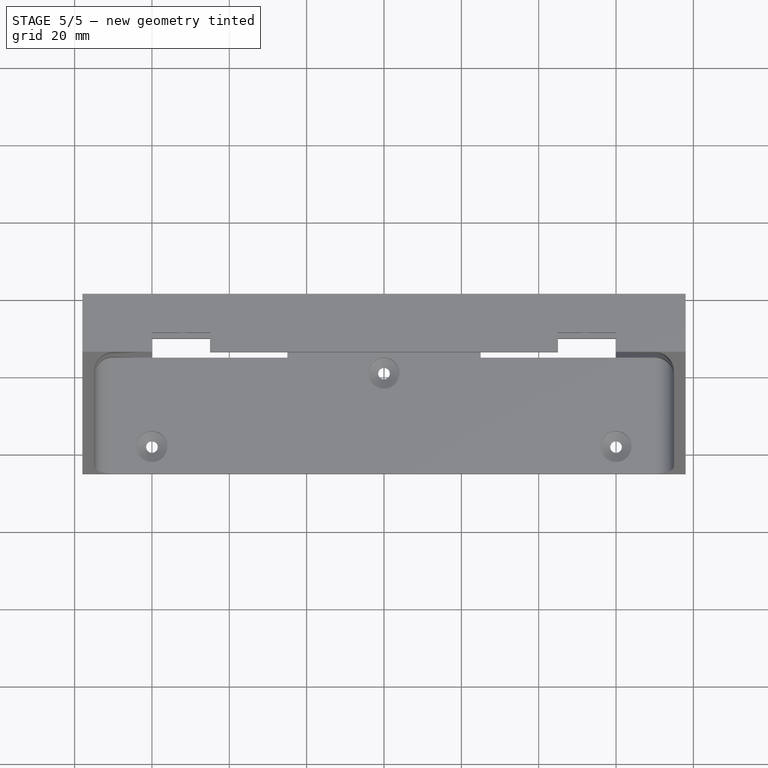
[diagram: stage 5 of 5 — top view after this stage's code; geometry added in this stage tinted green]
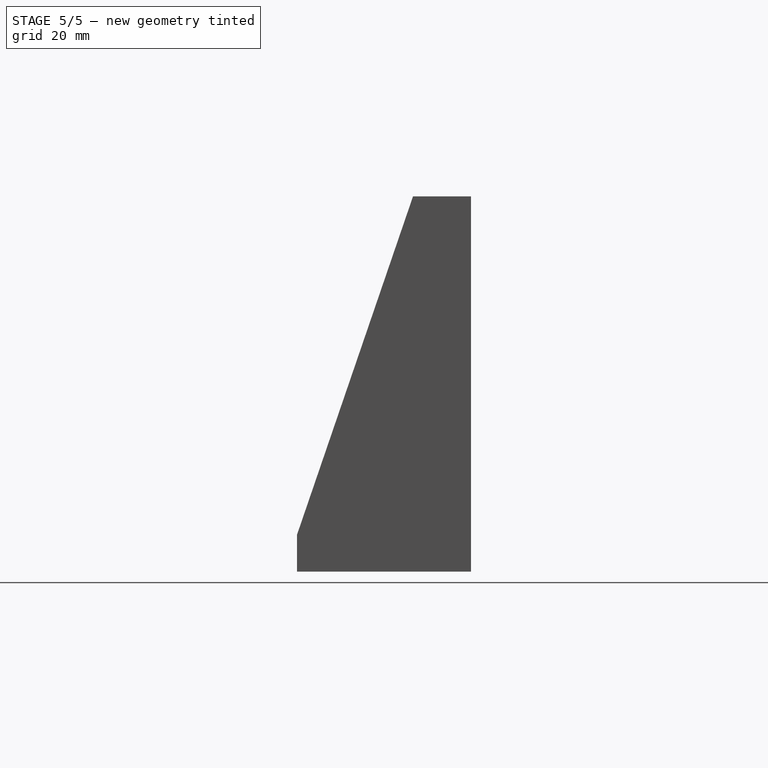
[diagram: stage 5 of 5 — right view after this stage's code; geometry added in this stage tinted green]
FEATURE [Sketcher::SketchObject] Sketch010
  ArcFitTolerance = 1e-06
  AttachmentSupport = -> [XZ_Plane001]
  FullyConstrained = true
  MakeInternals = false
  MapMode = 5
  Placement = pos=(0,0,0) rot=(1,0,0;1.5708rad)
  sketch-geometry (5):
    g0: LineSegment StartX=-60.5 StartY=-38 StartZ=0 EndX=60.5 EndY=-38 EndZ=0
    g1: LineSegment StartX=60.5 StartY=-38 StartZ=0 EndX=60.5 EndY=38 EndZ=0
    g2: LineSegment StartX=60.5 StartY=38 StartZ=0 EndX=-60.5 EndY=38 EndZ=0
    g3: LineSegment StartX=-60.5 StartY=38 StartZ=0 EndX=-60.5 EndY=-38 EndZ=0
    g4: GeomPoint [constr] X=0 Y=0 Z=0
  constraints (12):
    c: Coincident(g0,g1)
    c: Coincident(g1,g2)
    c: Coincident(g2,g3)
    c: Coincident(g3,g0)
    c: Horizontal(g0)
    c: Horizontal(g2)
    c: Vertical(g1)
    c: Vertical(g3)
    c: Symmetric(g2,g0,g4)
    c: Distance(g1,g3) = 121
    c: Distance(g0,g2) = 76
    c: Coincident(g4,g-1)
FEATURE [PartDesign::Pad] Pad004
  Direction = (0,-1,2e-16)
  Length = 3
  Length2 = 10
  Placement = pos=(0,0,0) rot=(1,0,0;1.5708rad)
  Profile = -> Sketch010
  ReferenceAxis = -> Sketch010 [N_Axis]
  Refine = true
  Suppressed = false
  Type = 0
FEATURE [PartDesign::Body] Body001  label="Display"
  AllowCompound = false
  Group = -> [Sketch010,Pad004]
  Origin = -> Origin001
  Placement = pos=(0,-5,0) rot=(0,0,1;0rad)
  Tip = -> Pad004
FEATURE [Sketcher::SketchObject] Sketch011
  ArcFitTolerance = 1e-06
  AttachmentSupport = -> [XZ_Plane002]
  FullyConstrained = false
  MakeInternals = false
  MapMode = 5
  Placement = pos=(0,0,0) rot=(1,0,0;1.5708rad)
  sketch-geometry (9):
    g0: LineSegment StartX=-46 StartY=-27.5 StartZ=0 EndX=46 EndY=-27.5 EndZ=0
    g1: LineSegment StartX=46 StartY=-27.5 StartZ=0 EndX=46 EndY=27.5 EndZ=0
    g2: LineSegment StartX=46 StartY=27.5 StartZ=0 EndX=-46 EndY=27.5 EndZ=0
    g3: LineSegment StartX=-46 StartY=27.5 StartZ=0 EndX=-46 EndY=-27.5 EndZ=0
    g4: GeomPoint [constr] X=0 Y=0 Z=0
    g5: Circle CenterX=-43.5 CenterY=-24.5 CenterZ=0 NormalX=0 NormalY=0 NormalZ=1 AngleXU=0 Radius=1.5
    g6: Circle CenterX=43.5 CenterY=-24.5 CenterZ=0 NormalX=0 NormalY=0 NormalZ=1 AngleXU=0 Radius=1.5
    g7: Circle CenterX=43.5 CenterY=24.5 CenterZ=0 NormalX=0 NormalY=0 NormalZ=1 AngleXU=0 Radius=1.61107
    g8: Circle CenterX=-32.5 CenterY=24.5 CenterZ=0 NormalX=0 NormalY=0 NormalZ=1 AngleXU=0 Radius=1.5
  constraints (23):
    c: Coincident(g0,g1)
    c: Coincident(g1,g2)
    c: Coincident(g2,g3)
    c: Coincident(g3,g0)
    c: Horizontal(g0)
    c: Horizontal(g2)
    c: Vertical(g1)
    c: Vertical(g3)
    c: Symmetric(g2,g0,g4)
    c: Distance(g1,g3) = 92
    c: Distance(g0,g2) = 55
    c: Coincident(g4,g-1)
    c: Diameter(g5) = 3
    c: Diameter(g6) = 3
    c: Diameter(g8) = 3
    c: DistanceX(g-1,g7) = 43.5
    c: Distance(g6,g-2) = 43.5
    c: Distance(g6,g-1) = 24.5
    c: Distance(g5,g-2) = 43.5
    c: Distance(g7,g-1) = 24.5
    c: DistanceY(g-1,g8) = 24.5
    c: Distance(g8,g-2) = 32.5
    c: Distance(g5,g-1) = 24.5
FEATURE [PartDesign::Pad] Pad005
  Direction = (0,-1,2e-16)
  Length = 2
  Length2 = 10
  Placement = pos=(0,0,0) rot=(1,0,0;1.5708rad)
  Profile = -> Sketch011
  ReferenceAxis = -> Sketch011 [N_Axis]
  Refine = true
  Suppressed = false
  Type = 0
FEATURE [Sketcher::SketchObject] Sketch012
  ArcFitTolerance = 1e-06
  AttachmentSupport = -> [Pad005]
  FullyConstrained = false
  MakeInternals = false
  MapMode = 5
  Placement = pos=(0,-2,0) rot=(1,0,0;1.5708rad)
  sketch-geometry (4):
    g0: LineSegment StartX=-12.0469 StartY=34.3473 StartZ=0 EndX=-12.0469 EndY=18.9109 EndZ=0
    g1: LineSegment StartX=-12.0469 StartY=18.9109 StartZ=0 EndX=14.5809 EndY=18.9109 EndZ=0
    g2: LineSegment StartX=14.5809 StartY=18.9109 StartZ=0 EndX=14.5809 EndY=34.3473 EndZ=0
    g3: LineSegment StartX=14.5809 StartY=34.3473 StartZ=0 EndX=-12.0469 EndY=34.3473 EndZ=0
  constraints (8):
    c: Coincident(g0,g1)
    c: Coincident(g1,g2)
    c: Coincident(g2,g3)
    c: Coincident(g3,g0)
    c: Vertical(g0)
    c: Vertical(g2)
    c: Horizontal(g1)
    c: Horizontal(g3)
FEATURE [PartDesign::Pad] Pad006
  BaseFeature = -> Pad005
  Direction = (0,-1,2e-16)
  Length = 10
  Length2 = 10
  Placement = pos=(0,0,0) rot=(1,0,0;1.5708rad)
  Profile = -> Sketch012
  ReferenceAxis = -> Sketch012 [N_Axis]
  Refine = true
  Suppressed = false
  Type = 0
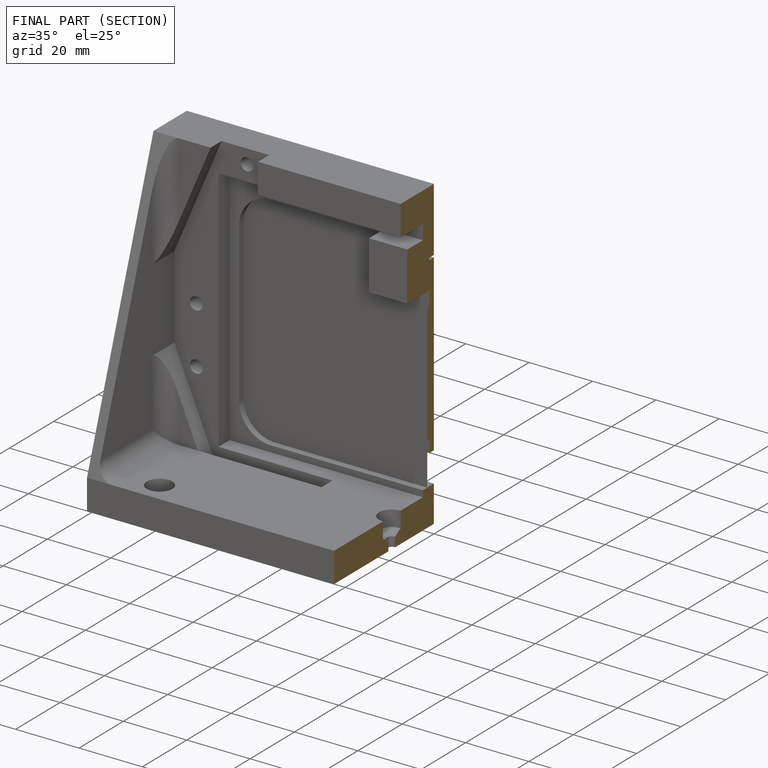
[diagram: finished part — half-section view (interior)]
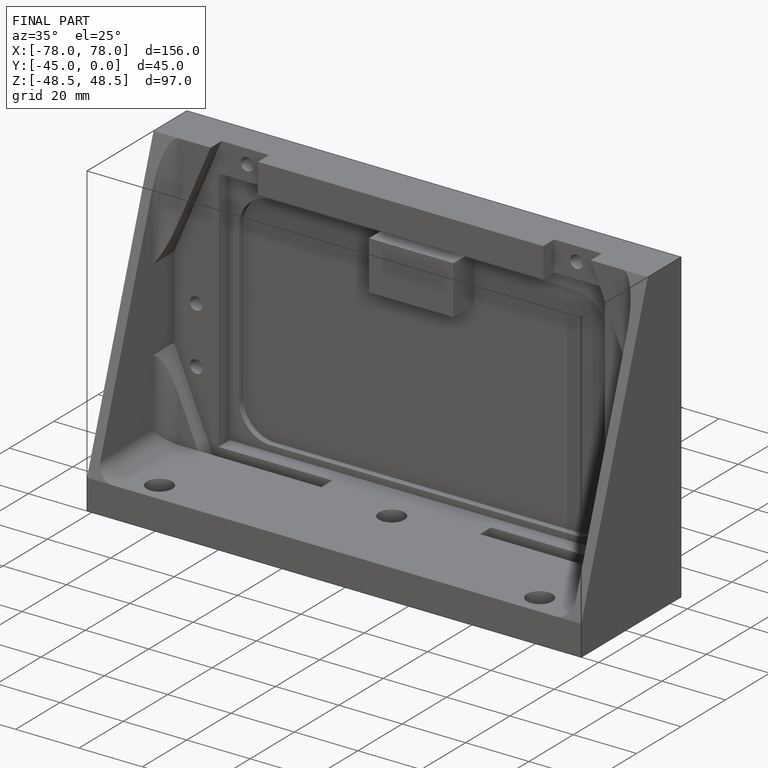
[diagram: finished part — iso view with bounding-box wireframe]
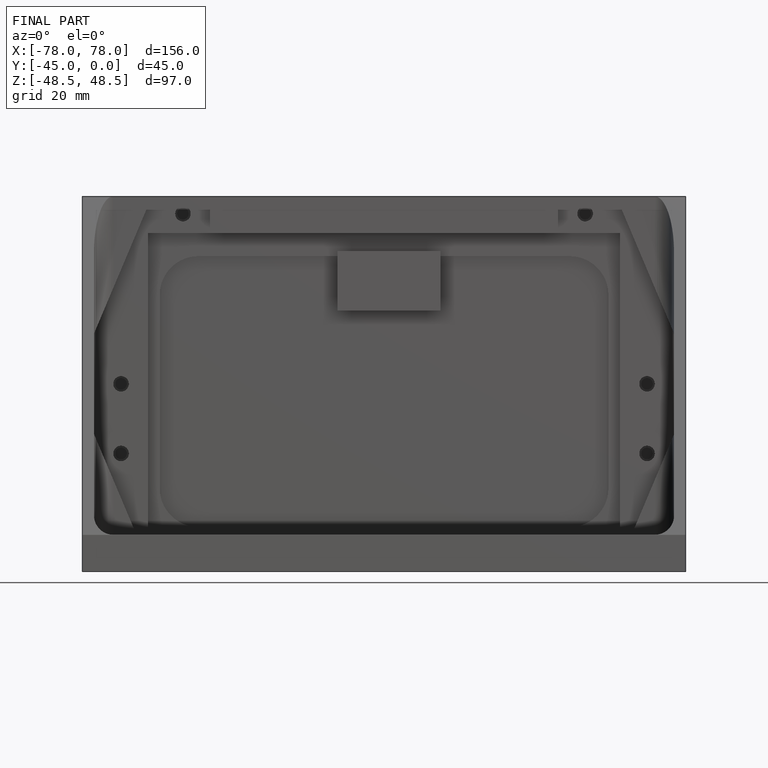
[diagram: finished part — front view with bounding-box wireframe]
